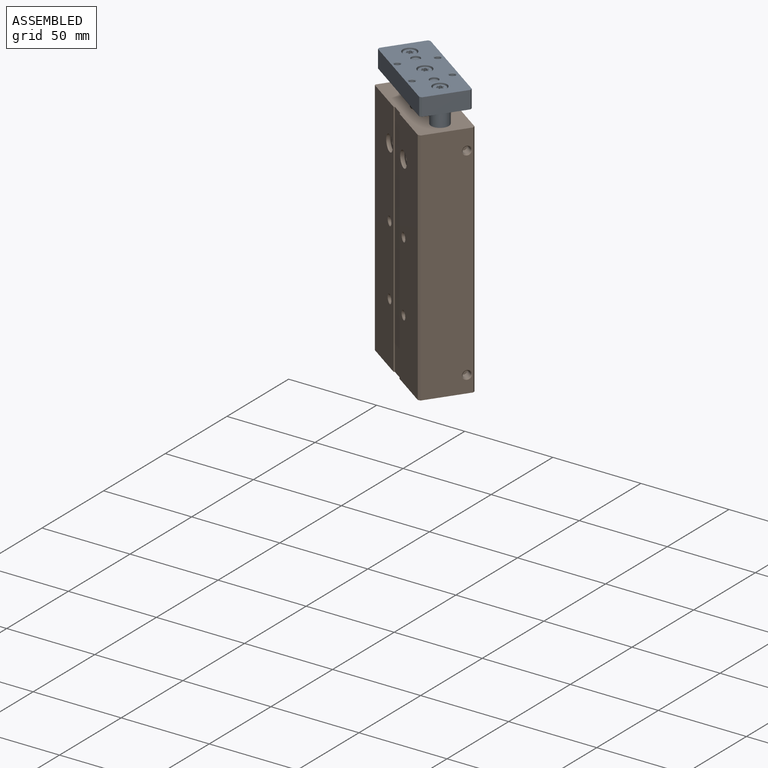
[diagram: assembled view]
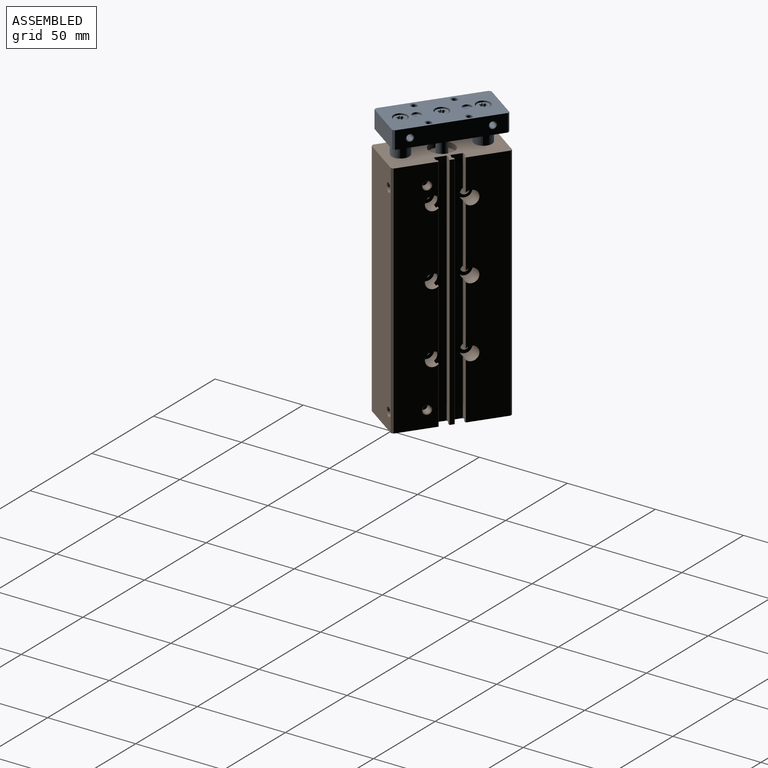
[diagram: assembled view, second angle]
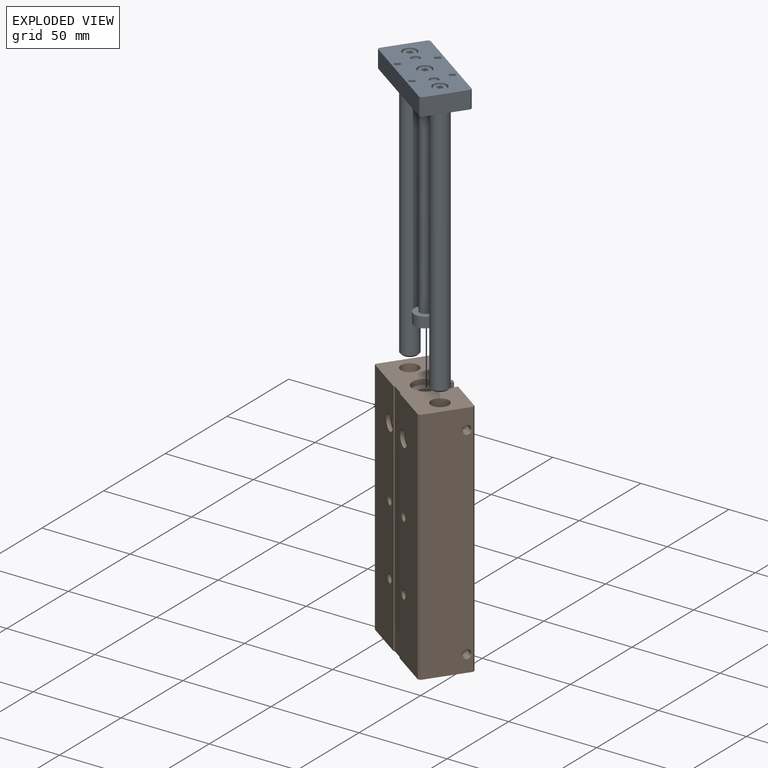
[diagram: exploded view]
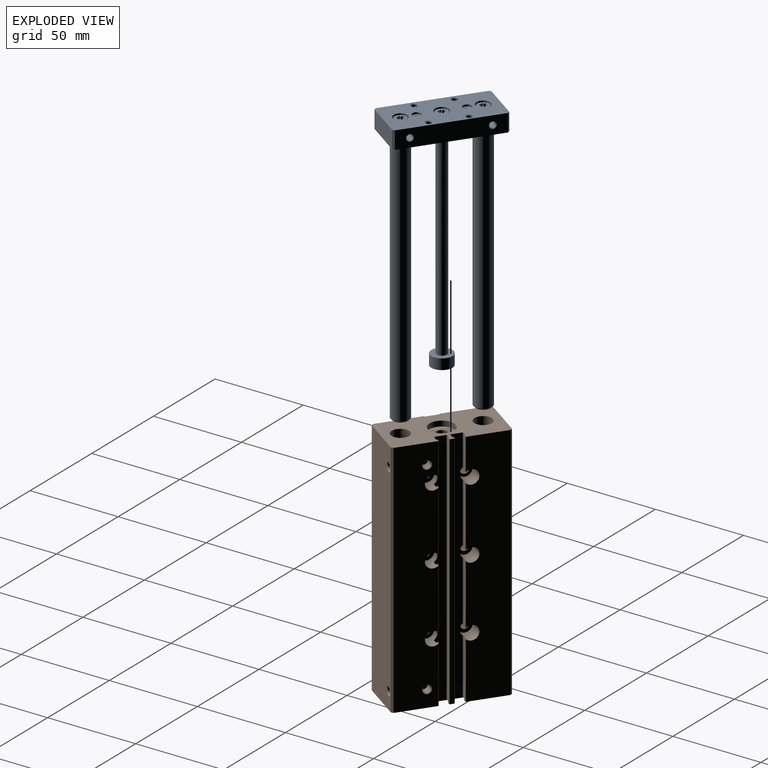
[diagram: exploded view, second angle]
ASSEMBLY  parts=2 mates=3
PART A: 100 faces, bbox 155x26x58 mm
  f0: cylinder r=5mm len=3.24mm, axis (-1,0,0), area 8.4mm2, adj f40
  f1: cone r=4mm half-angle=45deg, axis (1,0,0), area 40mm2, adj f2,f3
  f2: plane 8x8mm, normal (-1,0,0), area 50.3mm2, adj f1
  f3: cylinder r=5mm len=144mm, axis (-1,0,0), area 4523.9mm2, adj f1,f14
  f4: plane 58x26mm, normal (1,0,0), area 1265.7mm2, adj f6,f7,f8,f9,f10,f11,f12,f13
  f5: cylinder r=1.62mm len=7.89mm, axis (0,1,0), area 80.4mm2, adj f38,f99
  f6: plane 10x1mm, normal (0,0.71,0.71), area 14.1mm2, adj f4,f7,f13,f14
  f7: plane 56x10mm, normal (0,1,0), area 534.9mm2, adj f4,f6,f8,f14,f38,f39
  f8: plane 10x1mm, normal (0,0.71,-0.71), area 14.1mm2, adj f4,f7,f9,f14
  f9: plane 24x10mm, normal (0,0,-1), area 240mm2, adj f4,f8,f10,f14
  f10: plane 10x1mm, normal (0,-0.71,-0.71), area 14.1mm2, adj f4,f9,f11,f14
  f11: plane 56x10mm, normal (0,-1,0), area 560mm2, adj f4,f10,f12,f14
  f12: plane 10x1mm, normal (0,-0.71,0.71), area 14.1mm2, adj f4,f11,f13,f14
  f13: plane 24x10mm, normal (0,0,1), area 240mm2, adj f4,f6,f12,f14
  f14: plane 58x26mm, normal (-1,0,0), area 1271.2mm2, adj f3,f6,f7,f8,f9,f10,f11,f12
  f15: cone r=2mm half-angle=45deg, axis (-1,0,0), area 6.1mm2, adj f14,f16
  f16: cylinder r=1.62mm len=9.24mm, axis (-1,0,0), area 94.1mm2, adj f15,f26
  f17: cone r=1.62mm half-angle=45deg, axis (1,0,0), area 6.1mm2, adj f4,f18
  f18: cylinder r=1.62mm len=9.24mm, axis (-1,0,0), area 94.1mm2, adj f17,f19
  f19: cone r=2mm half-angle=45deg, axis (-1,0,0), area 6.1mm2, adj f14,f18
  f20: cone r=1.62mm half-angle=45deg, axis (1,0,0), area 6.1mm2, adj f4,f21
  f21: cylinder r=1.62mm len=9.24mm, axis (-1,0,0), area 94.1mm2, adj f20,f22
  f22: cone r=2mm half-angle=45deg, axis (-1,0,0), area 6.1mm2, adj f14,f21
  f23: cone r=1.62mm half-angle=45deg, axis (1,0,0), area 6.1mm2, adj f4,f24
  f24: cylinder r=1.62mm len=9.24mm, axis (-1,0,0), area 94.1mm2, adj f23,f25
  f25: cone r=2mm half-angle=45deg, axis (-1,0,0), area 6.1mm2, adj f14,f24
  f26: cone r=1.62mm half-angle=45deg, axis (1,0,0), area 6.1mm2, adj f4,f16
  f27: plane 12x12mm, normal (-1,0,0), area 113.1mm2, adj f28
  f28: cylinder r=6mm len=12mm, axis (-1,0,0), area 226.2mm2, adj f27,f29
  f29: plane 12x12mm, normal (1,0,0), area 84.8mm2, adj f28,f30
  f30: cylinder r=3mm len=114.4mm, axis (-1,0,0), area 2141.6mm2, adj f14,f29,f31,f32,f33,f41
  f31: plane 3x2.4mm, normal (0,0,-1), area 7.2mm2, adj f14,f30,f41
  f32: plane 3x2.4mm, normal (0,0,1), area 7.2mm2, adj f14,f30,f33
  f33: plane 2.4x0.25mm, normal (1,0,0), area 0.4mm2, adj f30,f32
  f34: cone r=866.03mm half-angle=60deg, axis (1,0,0), area 22.7mm2, adj f35
  f35: cylinder r=2.5mm len=5mm, axis (-1,0,0), area 15.7mm2, adj f4,f34
  f36: cone r=866.03mm half-angle=60deg, axis (1,0,0), area 22.7mm2, adj f37
  f37: cylinder r=2.5mm len=5mm, axis (-1,0,0), area 15.7mm2, adj f4,f36
  f38: cone r=2mm half-angle=45deg, axis (0,1,0), area 6.1mm2, adj f5,f7
  f39: cone r=2mm half-angle=45deg, axis (0,1,0), area 6.1mm2, adj f7,f40
  f40: cylinder r=1.62mm len=7.89mm, axis (0,1,0), area 80.4mm2, adj f0,f39
  f41: plane 2.4x0.25mm, normal (1,0,0), area 0.4mm2, adj f30,f31
  f42: cylinder r=5mm len=144mm, axis (-1,0,0), area 4523.9mm2, adj f14,f43
  f43: cone r=4mm half-angle=45deg, axis (1,0,0), area 40mm2, adj f42,f44
  f44: plane 8x8mm, normal (-1,0,0), area 50.3mm2, adj f43
  f45: plane 6x6mm, normal (1,0,0), area 19.4mm2, adj f46,f51,f52,f53,f54,f55,f56,f57
  f46: torus R=3mm, axis (1,0,0), area 16.4mm2, adj f45,f47
  f47: cylinder r=3.5mm len=7mm, axis (-1,0,0), area 57.2mm2, adj f46,f48
  f48: plane 8x8mm, normal (1,0,0), area 11.8mm2, adj f47,f49
  f49: cylinder r=4mm len=8mm, axis (-1,0,0), area 88mm2, adj f4,f48
  f50: plane 3.94x3.52mm, normal (1,0,0), area 8.9mm2, adj f51,f52,f53,f54,f55,f56,f57,f58
  f51: cylinder r=0.39mm len=1.6mm, axis (-1,0,0), area 1.7mm2, adj f45,f50,f52,f62
  f52: cylinder r=0.69mm len=1.6mm, axis (-1,0,0), area 1.8mm2, adj f45,f50,f51,f53
  f53: cylinder r=0.39mm len=1.6mm, axis (-1,0,0), area 1.7mm2, adj f45,f50,f52,f54
  f54: cylinder r=0.69mm len=1.6mm, axis (-1,0,0), area 1.8mm2, adj f45,f50,f53,f55
  f55: cylinder r=0.39mm len=1.6mm, axis (-1,0,0), area 1.7mm2, adj f45,f50,f54,f56
  f56: cylinder r=0.69mm len=1.6mm, axis (-1,0,0), area 1.8mm2, adj f45,f50,f55,f57
  f57: cylinder r=0.39mm len=1.6mm, axis (-1,0,0), area 1.7mm2, adj f45,f50,f56,f58
  f58: cylinder r=0.69mm len=1.6mm, axis (-1,0,0), area 1.8mm2, adj f45,f50,f57,f59
  f59: cylinder r=0.39mm len=1.6mm, axis (-1,0,0), area 1.7mm2, adj f45,f50,f58,f60
  f60: cylinder r=0.69mm len=1.6mm, axis (-1,0,0), area 1.8mm2, adj f45,f50,f59,f61
  f61: cylinder r=0.39mm len=1.6mm, axis (-1,0,0), area 1.7mm2, adj f45,f50,f60,f62
  f62: cylinder r=0.69mm len=1.6mm, axis (-1,0,0), area 1.8mm2, adj f45,f50,f51,f61
  f63: plane 6x6mm, normal (1,0,0), area 19.4mm2, adj f64,f74,f75,f76,f77,f78,f79,f80
  f64: torus R=3mm, axis (1,0,0), area 16.4mm2, adj f63,f65
  f65: cylinder r=3.5mm len=7mm, axis (-1,0,0), area 57.2mm2, adj f64,f66
  f66: plane 8x8mm, normal (1,0,0), area 11.8mm2, adj f65,f67
  f67: cylinder r=4mm len=8mm, axis (-1,0,0), area 88mm2, adj f4,f66
  f68: plane 6x6mm, normal (1,0,0), area 19.4mm2, adj f69,f87,f88,f89,f90,f91,f92,f93
  f69: torus R=3mm, axis (1,0,0), area 16.4mm2, adj f68,f70
  f70: cylinder r=3.5mm len=7mm, axis (-1,0,0), area 57.2mm2, adj f69,f71
  f71: plane 8x8mm, normal (1,0,0), area 11.8mm2, adj f70,f72
  f72: cylinder r=4mm len=8mm, axis (-1,0,0), area 88mm2, adj f4,f71
  f73: plane 3.94x3.52mm, normal (1,0,0), area 8.9mm2, adj f74,f75,f76,f77,f78,f79,f80,f81
  f74: cylinder r=0.39mm len=1.6mm, axis (-1,0,0), area 1.7mm2, adj f63,f73,f75,f85
  f75: cylinder r=0.69mm len=1.6mm, axis (-1,0,0), area 1.8mm2, adj f63,f73,f74,f76
  f76: cylinder r=0.39mm len=1.6mm, axis (-1,0,0), area 1.7mm2, adj f63,f73,f75,f77
  f77: cylinder r=0.69mm len=1.6mm, axis (-1,0,0), area 1.8mm2, adj f63,f73,f76,f78
  f78: cylinder r=0.39mm len=1.6mm, axis (-1,0,0), area 1.7mm2, adj f63,f73,f77,f79
  f79: cylinder r=0.69mm len=1.6mm, axis (-1,0,0), area 1.8mm2, adj f63,f73,f78,f80
  f80: cylinder r=0.39mm len=1.6mm, axis (-1,0,0), area 1.7mm2, adj f63,f73,f79,f81
  f81: cylinder r=0.69mm len=1.6mm, axis (-1,0,0), area 1.8mm2, adj f63,f73,f80,f82
  f82: cylinder r=0.39mm len=1.6mm, axis (-1,0,0), area 1.7mm2, adj f63,f73,f81,f83
  f83: cylinder r=0.69mm len=1.6mm, axis (-1,0,0), area 1.8mm2, adj f63,f73,f82,f84
  f84: cylinder r=0.39mm len=1.6mm, axis (-1,0,0), area 1.7mm2, adj f63,f73,f83,f85
  f85: cylinder r=0.69mm len=1.6mm, axis (-1,0,0), area 1.8mm2, adj f63,f73,f74,f84
  f86: plane 3.94x3.52mm, normal (1,0,0), area 8.9mm2, adj f87,f88,f89,f90,f91,f92,f93,f94
  f87: cylinder r=0.39mm len=1.6mm, axis (-1,0,0), area 1.7mm2, adj f68,f86,f88,f98
  f88: cylinder r=0.69mm len=1.6mm, axis (-1,0,0), area 1.8mm2, adj f68,f86,f87,f89
  f89: cylinder r=0.39mm len=1.6mm, axis (-1,0,0), area 1.7mm2, adj f68,f86,f88,f90
  f90: cylinder r=0.69mm len=1.6mm, axis (-1,0,0), area 1.8mm2, adj f68,f86,f89,f91
  f91: cylinder r=0.39mm len=1.6mm, axis (-1,0,0), area 1.7mm2, adj f68,f86,f90,f92
  f92: cylinder r=0.69mm len=1.6mm, axis (-1,0,0), area 1.8mm2, adj f68,f86,f91,f93
  f93: cylinder r=0.39mm len=1.6mm, axis (-1,0,0), area 1.7mm2, adj f68,f86,f92,f94
  f94: cylinder r=0.69mm len=1.6mm, axis (-1,0,0), area 1.8mm2, adj f68,f86,f93,f95
  f95: cylinder r=0.39mm len=1.6mm, axis (-1,0,0), area 1.7mm2, adj f68,f86,f94,f96
  f96: cylinder r=0.69mm len=1.6mm, axis (-1,0,0), area 1.8mm2, adj f68,f86,f95,f97
  f97: cylinder r=0.39mm len=1.6mm, axis (-1,0,0), area 1.7mm2, adj f68,f86,f96,f98
  f98: cylinder r=0.69mm len=1.6mm, axis (-1,0,0), area 1.8mm2, adj f68,f86,f87,f97
  f99: cylinder r=5mm len=3.24mm, axis (-1,0,0), area 8.4mm2, adj f5
PART B: 180 faces, bbox 136x28.1x60 mm
  f0: cone r=1.62mm half-angle=60deg, axis (-1,0,0), area 9.5mm2, adj f158
  f1: cylinder r=4mm len=9.4mm, axis (0,1,0), area 200.4mm2, adj f2,f4,f13,f14,f24,f28,f29,f42
  f2: cylinder r=0.4mm len=32.25mm, axis (-1,0,0), area 20.1mm2, adj f1,f28,f42,f64
  f3: cylinder r=4mm len=9.4mm, axis (0,1,0), area 200.4mm2, adj f14,f18,f19,f24,f25,f26,f27,f29
  f4: cylinder r=0.2mm len=32.25mm, axis (-1,0,0), area 10.1mm2, adj f1,f28,f64,f124
  f5: cylinder r=4mm len=9.4mm, axis (0,1,0), area 200.4mm2, adj f15,f16,f18,f19,f21,f22,f23,f25
  f6: cylinder r=4mm len=9.4mm, axis (0,1,0), area 200.4mm2, adj f17,f20,f31,f33,f34,f37,f39,f45
  f7: cylinder r=0.2mm len=32.25mm, axis (-1,0,0), area 10.1mm2, adj f8,f32,f35,f64
  f8: cylinder r=4mm len=9.4mm, axis (0,1,0), area 200.4mm2, adj f7,f20,f30,f31,f32,f33,f34,f35
  f9: cylinder r=4mm len=9.4mm, axis (0,1,0), area 200.4mm2, adj f17,f41,f43,f44,f45,f46,f48,f49
  f10: cylinder r=0.4mm len=136mm, axis (-1,0,0), area 85.5mm2, adj f12,f64,f65,f173
  f11: cylinder r=0.4mm len=136mm, axis (-1,0,0), area 85.5mm2, adj f64,f65,f123,f173
  f12: plane 136x1.2mm, normal (0,0,-1), area 163.2mm2, adj f10,f64,f65,f178
  f13: cylinder r=0.4mm len=32mm, axis (-1,0,0), area 20mm2, adj f1,f64,f117,f131
  f14: cylinder r=0.4mm len=34.01mm, axis (-1,0,0), area 21.2mm2, adj f1,f3,f117,f132
  f15: cylinder r=0.4mm len=18mm, axis (-1,0,0), area 11.2mm2, adj f5,f16,f65,f117
  f16: plane 17.69x2.6mm, normal (0,0,-1), area 46mm2, adj f5,f15,f65,f126
  f17: cylinder r=0.4mm len=34.01mm, axis (-1,0,0), area 21.2mm2, adj f6,f9,f45,f57
  f18: cylinder r=0.4mm len=34.01mm, axis (-1,0,0), area 21.2mm2, adj f3,f5,f19,f117
  f19: plane 33.39x2.6mm, normal (0,0,-1), area 86.8mm2, adj f3,f5,f18,f128
  f20: cylinder r=0.4mm len=34.01mm, axis (-1,0,0), area 21.2mm2, adj f6,f8,f39,f57
  f21: plane 18.25x1.2mm, normal (0,0,-1), area 21.9mm2, adj f5,f22,f23,f65
  f22: cylinder r=0.4mm len=18.25mm, axis (-1,0,0), area 11.3mm2, adj f5,f21,f42,f65
  f23: cylinder r=0.2mm len=18.25mm, axis (-1,0,0), area 5.7mm2, adj f5,f21,f65,f116
  f24: plane 34.49x1.2mm, normal (0,0,-1), area 41.4mm2, adj f1,f3,f29,f133
  f25: plane 34.49x1.2mm, normal (0,0,-1), area 41.4mm2, adj f3,f5,f26,f27
  f26: cylinder r=0.4mm len=34.49mm, axis (-1,0,0), area 21.4mm2, adj f3,f5,f25,f42
  f27: cylinder r=0.2mm len=34.49mm, axis (-1,0,0), area 10.8mm2, adj f3,f5,f25,f125
  f28: plane 32.25x1.2mm, normal (0,0,-1), area 38.7mm2, adj f1,f2,f4,f64
  f29: cylinder r=0.4mm len=34.49mm, axis (-1,0,0), area 21.4mm2, adj f1,f3,f24,f42
  f30: cylinder r=0.4mm len=32.25mm, axis (-1,0,0), area 20.1mm2, adj f8,f32,f64,f68
  f31: cylinder r=0.4mm len=34.49mm, axis (-1,0,0), area 21.4mm2, adj f6,f8,f33,f68
  f32: plane 32.25x1.2mm, normal (0,0,1), area 38.7mm2, adj f7,f8,f30,f64
  f33: plane 34.49x1.2mm, normal (0,0,1), area 41.4mm2, adj f6,f8,f31,f34
  f34: cylinder r=0.2mm len=34.49mm, axis (-1,0,0), area 10.8mm2, adj f6,f8,f33,f55
  f35: plane 32.05x0.25mm, normal (0,-1,0), area 8mm2, adj f7,f8,f36,f64
  f36: cylinder r=0.2mm len=31.84mm, axis (-1,0,0), area 10mm2, adj f8,f35,f38,f64
  f37: cylinder r=0.2mm len=33.68mm, axis (-1,0,0), area 10.5mm2, adj f6,f8,f39,f55
  f38: plane 31.69x2.6mm, normal (0,0,1), area 82.4mm2, adj f8,f36,f40,f64
  f39: plane 33.39x2.6mm, normal (0,0,1), area 86.8mm2, adj f6,f8,f20,f37
  f40: cylinder r=0.4mm len=32mm, axis (-1,0,0), area 20mm2, adj f8,f38,f57,f64
  f41: cylinder r=0.4mm len=18mm, axis (-1,0,0), area 11.2mm2, adj f9,f43,f57,f65
  f42: plane 136x22mm, normal (0,1,0), area 2860.8mm2, adj f1,f2,f3,f5,f22,f26,f29,f64
  f43: plane 17.69x2.6mm, normal (0,0,1), area 46mm2, adj f9,f41,f44,f65
  f44: cylinder r=0.2mm len=17.84mm, axis (-1,0,0), area 5.6mm2, adj f9,f43,f56,f65
  f45: plane 33.39x2.6mm, normal (0,0,1), area 86.8mm2, adj f6,f9,f17,f46
  f46: cylinder r=0.2mm len=33.68mm, axis (-1,0,0), area 10.5mm2, adj f6,f9,f45,f53
  f47: plane 136x24.91mm, normal (0,-1,0), area 3284.8mm2, adj f59,f60,f64,f65,f76,f86,f96
  f48: cylinder r=0.4mm len=34.49mm, axis (-1,0,0), area 21.4mm2, adj f6,f9,f49,f68
  f49: plane 34.49x1.2mm, normal (0,0,1), area 41.4mm2, adj f6,f9,f48,f54
  f50: cylinder r=0.4mm len=18.25mm, axis (-1,0,0), area 11.3mm2, adj f9,f51,f65,f68
  f51: plane 18.25x1.2mm, normal (0,0,1), area 21.9mm2, adj f9,f50,f52,f65
  f52: cylinder r=0.2mm len=18.25mm, axis (-1,0,0), area 5.7mm2, adj f9,f51,f56,f65
  f53: plane 34.1x0.25mm, normal (0,-1,0), area 8.5mm2, adj f6,f9,f46,f54
  f54: cylinder r=0.2mm len=34.49mm, axis (-1,0,0), area 10.8mm2, adj f6,f9,f49,f53
  f55: plane 34.1x0.25mm, normal (0,-1,0), area 8.5mm2, adj f6,f8,f34,f37
  f56: plane 18.05x0.25mm, normal (0,-1,0), area 4.5mm2, adj f9,f44,f52,f65
  f57: plane 136x5.7mm, normal (0,1,0), area 758.4mm2, adj f6,f8,f9,f17,f20,f40,f41,f64
  f58: plane 136x1mm, normal (0,0.71,-0.71), area 192.3mm2, adj f64,f65,f66,f68
  f59: plane 136x1.05mm, normal (0,-0.71,-0.71), area 201.9mm2, adj f47,f64,f65,f66
  f60: plane 136x0.55mm, normal (0,-0.5,0.87), area 86.4mm2, adj f47,f61,f64,f65
  f61: plane 136x7.45mm, normal (0,-1,0), area 1012.6mm2, adj f60,f62,f64,f65
  f62: plane 136x0.55mm, normal (0,-0.5,-0.87), area 86.4mm2, adj f61,f64,f65,f134
  f63: plane 136x0.55mm, normal (0,-0.71,0.71), area 105.8mm2, adj f64,f65,f67,f134
  f64: plane 60x28.05mm, normal (-1,0,0), area 1382.7mm2, adj f2,f4,f7,f10,f11,f12,f13,f28
  f65: plane 60x28.05mm, normal (1,0,0), area 1305.7mm2, adj f10,f11,f12,f15,f16,f21,f22,f23
  f66: plane 136x26mm, normal (0,0,-1), area 3496.7mm2, adj f58,f59,f64,f65,f101,f104
  f67: plane 136x26.5mm, normal (0,0,1), area 3489.3mm2, adj f63,f64,f65,f69,f115,f136,f139,f142
  f68: plane 136x22mm, normal (0,1,0), area 2821.5mm2, adj f6,f8,f9,f30,f31,f48,f50,f58
  f69: cone r=2mm half-angle=45deg, axis (0,0,1), area 6.1mm2, adj f67,f70
  f70: cylinder r=1.62mm len=9.35mm, axis (0,0,1), area 95.2mm2, adj f69,f135
  f71: cone r=2.07mm half-angle=45deg, axis (0,-1,0), area 8.8mm2, adj f72,f134
  f72: cylinder r=2.07mm len=8.57mm, axis (0,1,0), area 111.3mm2, adj f71,f73
  f73: plane 4.3x4.3mm, normal (0,1,0), area 1.1mm2, adj f72,f74
  f74: cylinder r=2.15mm len=9.65mm, axis (0,1,0), area 130.4mm2, adj f73,f75
  f75: plane 8x8mm, normal (0,1,0), area 35.7mm2, adj f1,f74
  f76: cone r=2.07mm half-angle=45deg, axis (0,-1,0), area 8.8mm2, adj f47,f77
  f77: cylinder r=2.07mm len=8.57mm, axis (0,1,0), area 111.3mm2, adj f76,f78
  f78: plane 4.3x4.3mm, normal (0,1,0), area 1.1mm2, adj f77,f79
  f79: cylinder r=2.15mm len=9.65mm, axis (0,1,0), area 130.4mm2, adj f78,f80
  f80: plane 8x8mm, normal (0,1,0), area 35.7mm2, adj f8,f79
  f81: cone r=2.07mm half-angle=45deg, axis (0,-1,0), area 8.8mm2, adj f82,f134
  f82: cylinder r=2.07mm len=8.57mm, axis (0,1,0), area 111.3mm2, adj f81,f83
  f83: plane 4.3x4.3mm, normal (0,1,0), area 1.1mm2, adj f82,f84
  f84: cylinder r=2.15mm len=9.65mm, axis (0,1,0), area 130.4mm2, adj f83,f85
  f85: plane 8x8mm, normal (0,1,0), area 35.7mm2, adj f3,f84
  f86: cone r=2.07mm half-angle=45deg, axis (0,-1,0), area 8.8mm2, adj f47,f87
  f87: cylinder r=2.07mm len=8.57mm, axis (0,1,0), area 111.3mm2, adj f86,f88
  f88: plane 4.3x4.3mm, normal (0,1,0), area 1.1mm2, adj f87,f89
  f89: cylinder r=2.15mm len=9.65mm, axis (0,1,0), area 130.4mm2, adj f88,f90
  f90: plane 8x8mm, normal (0,1,0), area 35.7mm2, adj f6,f89
  f91: cylinder r=4.5mm len=9mm, axis (0,1,0), area 59.4mm2, adj f92,f134
  f92: plane 9x9mm, normal (0,-1,0), area 44mm2, adj f91,f179
  f93: plane 8x8mm, normal (0,1,0), area 30.6mm2, adj f5,f179
  f94: cone r=2.07mm half-angle=45deg, axis (0,-1,0), area 8.8mm2, adj f95,f97
  f95: cylinder r=2.07mm len=6.47mm, axis (0,1,0), area 84mm2, adj f94,f98
  f96: cylinder r=4.5mm len=9mm, axis (0,1,0), area 59.4mm2, adj f47,f97
  f97: plane 9x9mm, normal (0,-1,0), area 44mm2, adj f94,f96
  f98: plane 4.3x4.3mm, normal (0,1,0), area 1.1mm2, adj f95,f99
  f99: cylinder r=2.15mm len=9.65mm, axis (0,1,0), area 130.4mm2, adj f98,f100
  f100: plane 8x8mm, normal (0,1,0), area 35.7mm2, adj f9,f99
  f101: cone r=2.07mm half-angle=45deg, axis (0,0,-1), area 8.8mm2, adj f66,f102
  f102: cylinder r=2.07mm len=4.57mm, axis (0,0,1), area 59.3mm2, adj f101,f103
  f103: plane 4.13x4.13mm, normal (0,0,-1), area 13.4mm2, adj f102
  f104: cone r=2.07mm half-angle=45deg, axis (0,0,-1), area 8.8mm2, adj f66,f105
  f105: cylinder r=2.07mm len=4.57mm, axis (0,0,1), area 59.3mm2, adj f104,f106
  f106: plane 4.13x4.13mm, normal (0,0,-1), area 13.4mm2, adj f105
  f107: cone r=2.07mm half-angle=45deg, axis (0,1,0), area 8.8mm2, adj f68,f108
  f108: cylinder r=2.07mm len=4.57mm, axis (0,-1,0), area 59.3mm2, adj f107,f109
  f109: plane 4.13x4.13mm, normal (0,1,0), area 13.4mm2, adj f108
  f110: cone r=2.07mm half-angle=45deg, axis (0,1,0), area 8.8mm2, adj f68,f111
  f111: cylinder r=2.07mm len=4.57mm, axis (0,-1,0), area 59.3mm2, adj f110,f112
  f112: plane 4.13x4.13mm, normal (0,1,0), area 13.4mm2, adj f111
  f113: cylinder r=5mm len=136mm, axis (-1,0,0), area 4272.6mm2, adj f64,f65
  f114: cylinder r=5mm len=136mm, axis (-1,0,0), area 4272.6mm2, adj f64,f65
  f115: plane 136x1mm, normal (0,0.71,0.71), area 192.3mm2, adj f42,f64,f65,f67
  f116: plane 18.05x0.25mm, normal (0,-1,0), area 4.5mm2, adj f5,f23,f65,f126
  f117: plane 136x5.7mm, normal (0,1,0), area 758.4mm2, adj f1,f3,f5,f13,f14,f15,f18,f64
  f118: cylinder r=0.4mm len=136mm, axis (-1,0,0), area 85.5mm2, adj f64,f65,f117,f119
  f119: plane 136x2.6mm, normal (0,0,1), area 353.6mm2, adj f64,f65,f118,f120
  f120: cylinder r=0.2mm len=136mm, axis (-1,0,0), area 42.7mm2, adj f64,f65,f119,f121
  f121: plane 136x0.25mm, normal (0,-1,0), area 34mm2, adj f64,f65,f120,f122
  f122: cylinder r=0.2mm len=136mm, axis (-1,0,0), area 42.7mm2, adj f64,f65,f121,f123
  f123: plane 136x1.2mm, normal (0,0,1), area 163.2mm2, adj f11,f64,f65,f122
  f124: plane 32.05x0.25mm, normal (0,-1,0), area 8mm2, adj f1,f4,f64,f130
  f125: plane 34.1x0.25mm, normal (0,-1,0), area 8.5mm2, adj f3,f5,f27,f128
  f126: cylinder r=0.2mm len=17.84mm, axis (-1,0,0), area 5.6mm2, adj f5,f16,f65,f116
  f127: plane 34.1x0.25mm, normal (0,-1,0), area 8.5mm2, adj f1,f3,f129,f133
  f128: cylinder r=0.2mm len=33.68mm, axis (-1,0,0), area 10.5mm2, adj f3,f5,f19,f125
  f129: cylinder r=0.2mm len=33.68mm, axis (-1,0,0), area 10.5mm2, adj f1,f3,f127,f132
  f130: cylinder r=0.2mm len=31.84mm, axis (-1,0,0), area 10mm2, adj f1,f64,f124,f131
  f131: plane 31.69x2.6mm, normal (0,0,-1), area 82.4mm2, adj f1,f13,f64,f130
  f132: plane 33.39x2.6mm, normal (0,0,-1), area 86.8mm2, adj f1,f3,f14,f129
  f133: cylinder r=0.2mm len=34.49mm, axis (-1,0,0), area 10.8mm2, adj f1,f3,f24,f127
  f134: plane 136x25.41mm, normal (0,-1,0), area 3352.8mm2, adj f62,f63,f64,f65,f71,f81,f91
  f135: cone r=1.62mm half-angle=60deg, axis (0,0,1), area 9.5mm2, adj f70
  f136: cone r=2mm half-angle=45deg, axis (0,0,1), area 6.1mm2, adj f67,f137
  f137: cylinder r=1.62mm len=9.35mm, axis (0,0,1), area 95.2mm2, adj f136,f138
  f138: cone r=1.62mm half-angle=60deg, axis (0,0,1), area 9.5mm2, adj f137
  f139: cone r=2mm half-angle=45deg, axis (0,0,1), area 6.1mm2, adj f67,f140
  f140: cylinder r=1.62mm len=9.35mm, axis (0,0,1), area 95.2mm2, adj f139,f141
  f141: cone r=1.62mm half-angle=60deg, axis (0,0,1), area 9.5mm2, adj f140
  f142: cone r=2mm half-angle=45deg, axis (0,0,1), area 6.1mm2, adj f67,f143
  f143: cylinder r=1.62mm len=9.35mm, axis (0,0,1), area 95.2mm2, adj f142,f144
  f144: cone r=1.62mm half-angle=60deg, axis (0,0,1), area 9.5mm2, adj f143
  f145: cone r=2mm half-angle=45deg, axis (0,0,1), area 6.1mm2, adj f67,f146
  f146: cylinder r=1.62mm len=9.35mm, axis (0,0,1), area 95.2mm2, adj f145,f147
  f147: cone r=1.62mm half-angle=60deg, axis (0,0,1), area 9.5mm2, adj f146
  f148: cone r=2mm half-angle=45deg, axis (0,0,1), area 6.1mm2, adj f67,f149
  f149: cylinder r=1.62mm len=9.35mm, axis (0,0,1), area 95.2mm2, adj f148,f150
  f150: cone r=1.62mm half-angle=60deg, axis (0,0,1), area 9.5mm2, adj f149
  f151: cone r=2mm half-angle=45deg, axis (-1,0,0), area 6.1mm2, adj f64,f152
  f152: cylinder r=1.62mm len=9.35mm, axis (-1,0,0), area 95.2mm2, adj f151,f153
  f153: cone r=1.62mm half-angle=60deg, axis (-1,0,0), area 9.5mm2, adj f152
  f154: cone r=2mm half-angle=45deg, axis (-1,0,0), area 6.1mm2, adj f64,f155
  f155: cylinder r=1.62mm len=9.35mm, axis (-1,0,0), area 95.2mm2, adj f154,f156
  f156: cone r=1.62mm half-angle=60deg, axis (-1,0,0), area 9.5mm2, adj f155
  f157: cone r=2mm half-angle=45deg, axis (-1,0,0), area 6.1mm2, adj f64,f158
  f158: cylinder r=1.62mm len=9.35mm, axis (-1,0,0), area 95.2mm2, adj f0,f157
  f159: cylinder r=2.5mm len=5mm, axis (1,0,0), area 15.7mm2, adj f64,f160
  f160: plane 5x5mm, normal (-1,0,0), area 19.6mm2, adj f159
  f161: cylinder r=2.5mm len=5mm, axis (1,0,0), area 15.7mm2, adj f64,f162
  f162: plane 5x5mm, normal (-1,0,0), area 19.6mm2, adj f161
  f163: plane 12x12mm, normal (1,0,0), area 113.1mm2, adj f164
  f164: cylinder r=6mm len=106mm, axis (-1,0,0), area 3996.1mm2, adj f163,f165
  f165: plane 12x12mm, normal (-1,0,0), area 84.8mm2, adj f164,f166
  f166: cylinder r=3mm len=8.4mm, axis (-1,0,0), area 158.3mm2, adj f165,f167
  f167: plane 14x14mm, normal (1,0,0), area 125.7mm2, adj f166,f168
  f168: cylinder r=7mm len=14mm, axis (-1,0,0), area 131.9mm2, adj f65,f167
  f169: cylinder r=2.5mm len=5mm, axis (0,0,1), area 15.7mm2, adj f67,f170
  f170: plane 5x5mm, normal (0,0,1), area 19.6mm2, adj f169
  f171: cylinder r=2.5mm len=5mm, axis (0,0,1), area 15.7mm2, adj f67,f172
  f172: plane 5x5mm, normal (0,0,1), area 19.6mm2, adj f171
  f173: plane 136x2mm, normal (0,1,0), area 272mm2, adj f10,f11,f64,f65
  f174: cylinder r=0.4mm len=136mm, axis (-1,0,0), area 85.5mm2, adj f57,f64,f65,f175
  f175: plane 136x2.6mm, normal (0,0,-1), area 353.6mm2, adj f64,f65,f174,f176
  f176: cylinder r=0.2mm len=136mm, axis (-1,0,0), area 42.7mm2, adj f64,f65,f175,f177
  f177: plane 136x0.25mm, normal (0,-1,0), area 34mm2, adj f64,f65,f176,f178
  f178: cylinder r=0.2mm len=136mm, axis (-1,0,0), area 42.7mm2, adj f12,f64,f65,f177
  f179: cylinder r=2.5mm len=16.55mm, axis (0,-1,0), area 260mm2, adj f92,f93
PLACE A rot(axis=(-0.29,-0.91,-0.29),95.2deg) t=(-23.66,37.28,105.29)mm
PLACE B rot(axis=(-0.29,-0.91,-0.29),95.2deg) t=(-23.66,37.28,99.29)mm
MATE cylindrical B.f114 <-> A.f42  axis (0,0,-1) through (-6.87,25.52,31.29)mm
MATE planar A.f42 <-> B.f64  axis (0,0,-1) through (-6.87,25.52,-36.71)mm
MATE cylindrical A.f0 <-> B.f113  axis (0,0,-1) through (-40.45,49.04,-35.71)mm
